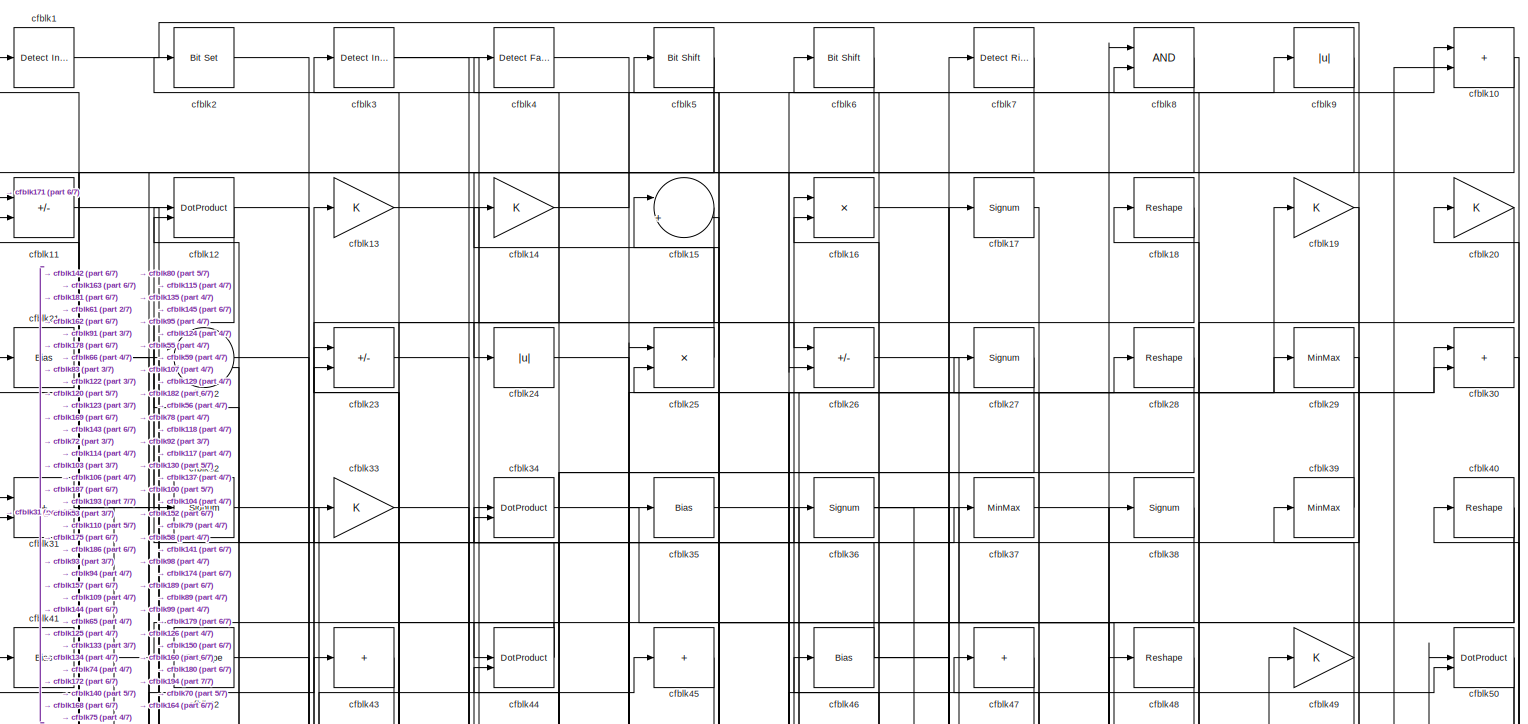
[diagram: root canvas - part 1/7, full width, top band]
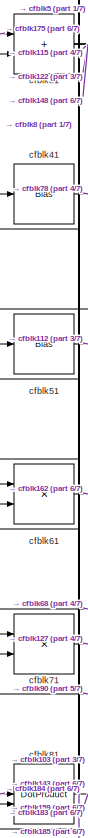
[diagram: root canvas - part 2/7, top left region]
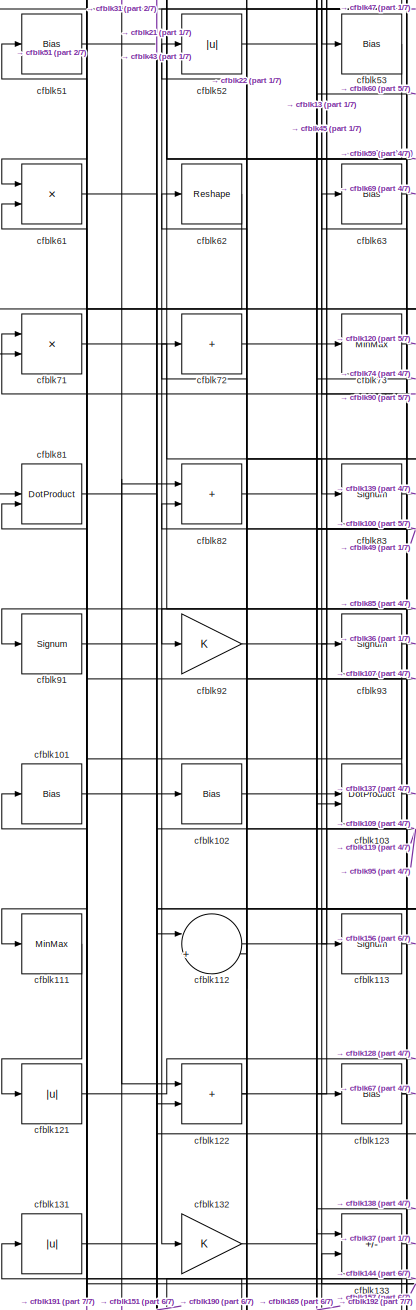
[diagram: root canvas - part 3/7, middle left region]
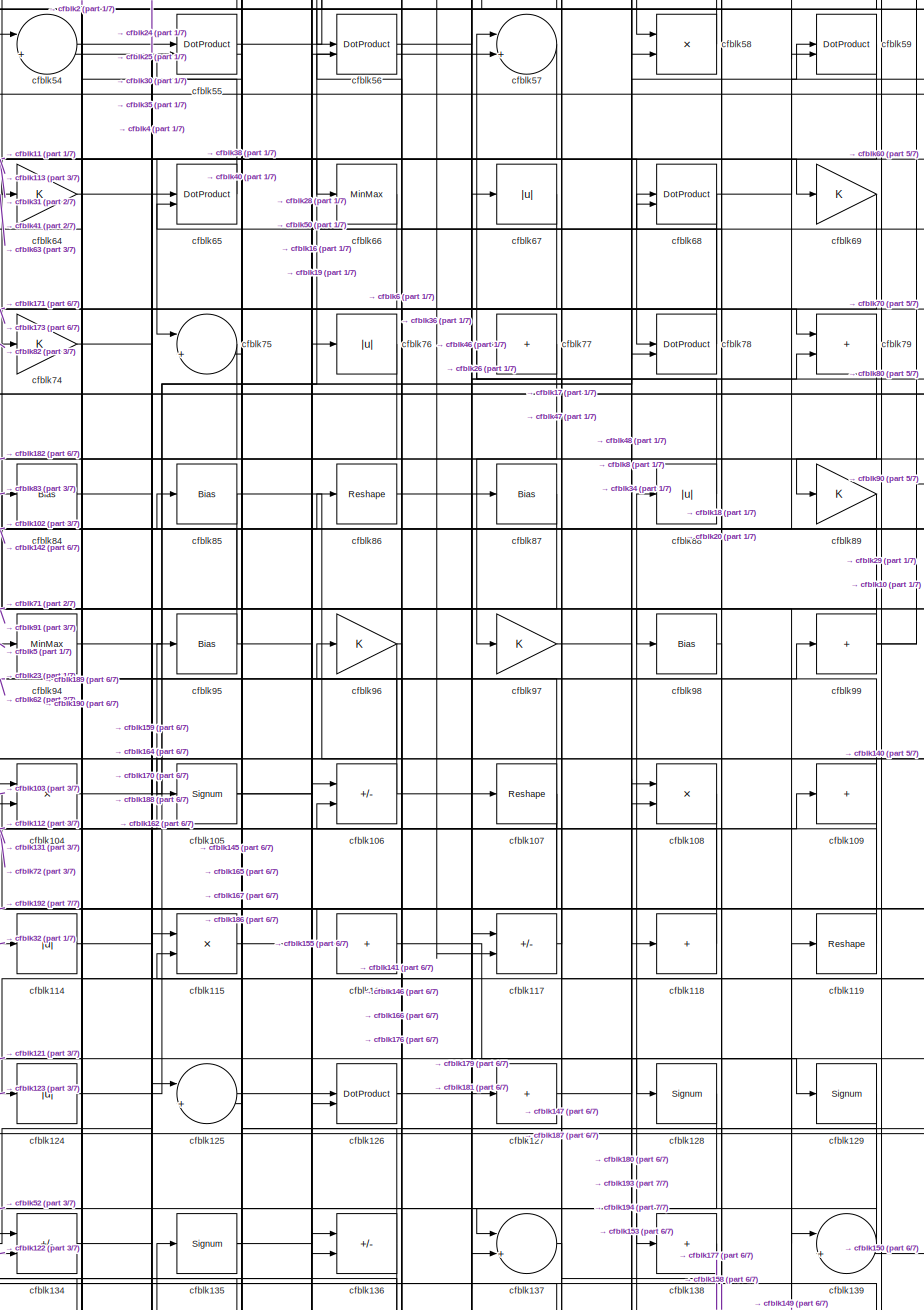
[diagram: root canvas - part 4/7, central region]
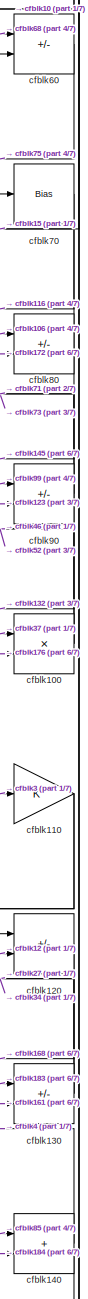
[diagram: root canvas - part 5/7, middle right region]
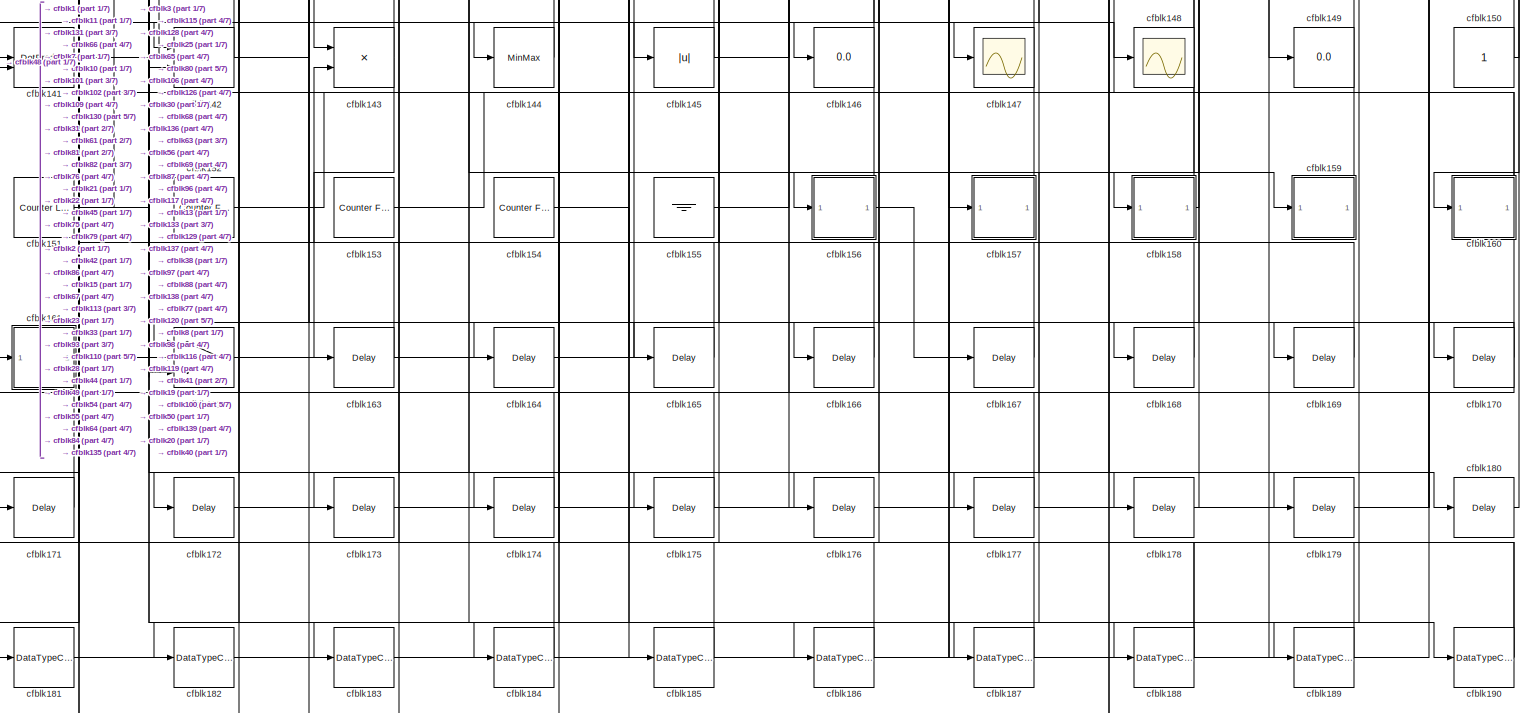
[diagram: root canvas - part 6/7, full width, bottom band]
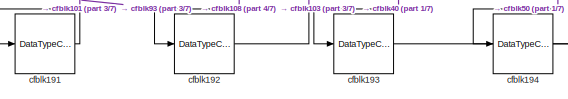
[diagram: root canvas - part 7/7, bottom left region]
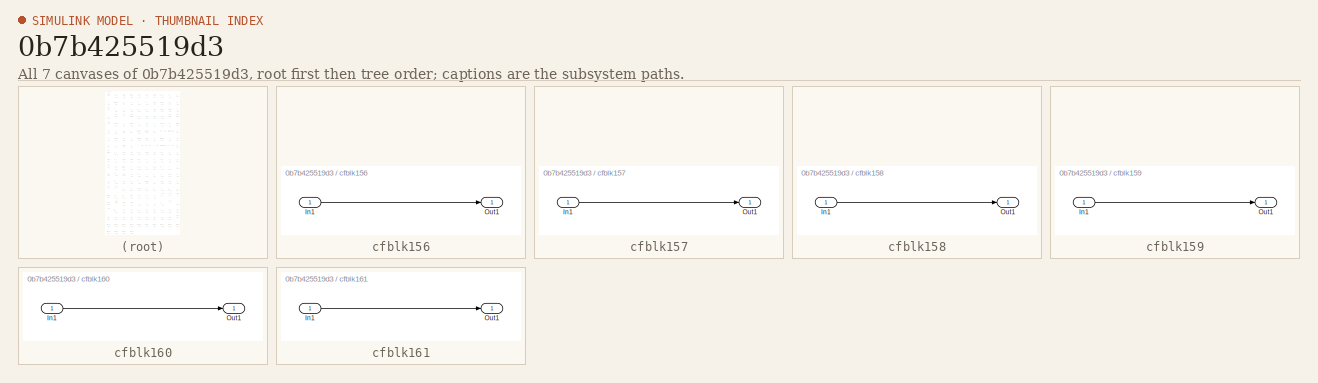
[diagram: thumbnail index - all 7 canvases of the model, root first then tree order]
MODEL slx_0b7b425519d3
KIND model
CONFIG AbsTol = auto
CONFIG EnableMultiTasking = off
CONFIG FixedStep = auto
CONFIG MaxStep = auto
CONFIG MinStep = auto
CONFIG RelTol = 1e-3
CONFIG SampleTimeConstraint = Unconstrained
CONFIG SolverName = VariableStepAuto
CONFIG StartTime = 0.0
CONFIG StopTime = 10.0
BLOCK [Reference] cfblk1  REF=simulink/Logic and Bit
Operations/Detect
Increase
  LibrarySourceBlock = hdlsllib/Logic and Bit\nOperations/Detect\nIncrease
  SourceBlock = simulink/Logic and Bit\nOperations/Detect\nIncrease
  SourceType = Detect Increase
BLOCK [Sum] cfblk10
  IconShape = rectangular
BLOCK [Product] cfblk100
  Inputs = */
  RndMeth = Zero
  SaturateOnIntegerOverflow = on
BLOCK [Bias] cfblk101
  Bias = 0.0
  SaturateOnIntegerOverflow = off
BLOCK [Bias] cfblk102
  Bias = 0.0
  SaturateOnIntegerOverflow = off
BLOCK [DotProduct] cfblk103
  OutDataTypeStr = Inherit: Inherit via internal rule
BLOCK [Product] cfblk104
  Inputs = */
  RndMeth = Zero
  SaturateOnIntegerOverflow = on
BLOCK [Signum] cfblk105
BLOCK [Sum] cfblk106
  IconShape = rectangular
  Inputs = +-
BLOCK [Reshape] cfblk107
BLOCK [Product] cfblk108
  Inputs = */
  RndMeth = Zero
  SaturateOnIntegerOverflow = on
BLOCK [Sum] cfblk109
  IconShape = rectangular
  Inputs = +
BLOCK [Sum] cfblk11
  IconShape = rectangular
  Inputs = +-
BLOCK [Gain] cfblk110
BLOCK [MinMax] cfblk111
BLOCK [Sum] cfblk112
  Inputs = |++
BLOCK [Signum] cfblk113
BLOCK [Abs] cfblk114
  SaturateOnIntegerOverflow = off
BLOCK [Product] cfblk115
  Inputs = */
  RndMeth = Zero
  SaturateOnIntegerOverflow = on
BLOCK [Sum] cfblk116
  IconShape = rectangular
  Inputs = +
BLOCK [Sum] cfblk117
  IconShape = rectangular
  Inputs = +-
BLOCK [Sum] cfblk118
  IconShape = rectangular
  Inputs = +
BLOCK [Reshape] cfblk119
BLOCK [DotProduct] cfblk12
  OutDataTypeStr = Inherit: Inherit via internal rule
BLOCK [Sum] cfblk120
  IconShape = rectangular
  Inputs = +-
BLOCK [Abs] cfblk121
  SaturateOnIntegerOverflow = off
BLOCK [Sum] cfblk122
  IconShape = rectangular
BLOCK [Bias] cfblk123
  Bias = 0.0
  SaturateOnIntegerOverflow = off
BLOCK [Abs] cfblk124
  SaturateOnIntegerOverflow = off
BLOCK [Sum] cfblk125
  Inputs = |++
BLOCK [DotProduct] cfblk126
  OutDataTypeStr = Inherit: Inherit via internal rule
BLOCK [Sum] cfblk127
  IconShape = rectangular
  Inputs = +
BLOCK [Signum] cfblk128
BLOCK [Signum] cfblk129
BLOCK [Gain] cfblk13
BLOCK [Sum] cfblk130
  IconShape = rectangular
  Inputs = +-
BLOCK [Abs] cfblk131
  SaturateOnIntegerOverflow = off
BLOCK [Gain] cfblk132
BLOCK [Sum] cfblk133
  IconShape = rectangular
  Inputs = +-
BLOCK [Sum] cfblk134
  IconShape = rectangular
  Inputs = +-
BLOCK [Signum] cfblk135
BLOCK [Sum] cfblk136
  IconShape = rectangular
  Inputs = +-
BLOCK [Sum] cfblk137
  Inputs = |++
BLOCK [Sum] cfblk138
  IconShape = rectangular
  Inputs = +
BLOCK [Sum] cfblk139
  Inputs = |++
BLOCK [Gain] cfblk14
BLOCK [Sum] cfblk140
  IconShape = rectangular
BLOCK [DotProduct] cfblk141
  OutDataTypeStr = Inherit: Inherit via internal rule
BLOCK [Product] cfblk142
  Inputs = */
  RndMeth = Zero
  SaturateOnIntegerOverflow = on
BLOCK [Product] cfblk143
  Inputs = */
  RndMeth = Zero
  SaturateOnIntegerOverflow = on
BLOCK [MinMax] cfblk144
BLOCK [Abs] cfblk145
  SaturateOnIntegerOverflow = off
BLOCK [Display] cfblk146
  Decimation = 1
BLOCK [Scope] cfblk147
  Floating = off
  NumInputPorts = 1
  ScopeSpecificationString = Simulink.scopes.TimeScopeBlockCfg('CurrentConfiguration', extmgr.ConfigurationSet(extmgr.Configuration('Core','General UI',true),extmgr.Configuration('Core','Source UI',true),extmgr.Configuration('Sources','WiredSimulink',true,'DataLoggingVariableName','ScopeData2','DataLoggingSaveFormat','Array','DataLoggingLimitDataPoints',true,'DataLoggingDecimation','1'),extmgr.Configuration('Visuals','Time Do...<+868ch>
BLOCK [Scope] cfblk148
  Floating = off
  NumInputPorts = 1
  ScopeSpecificationString = Simulink.scopes.TimeScopeBlockCfg('CurrentConfiguration', extmgr.ConfigurationSet(extmgr.Configuration('Core','General UI',true),extmgr.Configuration('Core','Source UI',true),extmgr.Configuration('Sources','WiredSimulink',true,'DataLoggingVariableName','ScopeData2','DataLoggingSaveFormat','Array','DataLoggingLimitDataPoints',true,'DataLoggingDecimation','1'),extmgr.Configuration('Visuals','Time Do...<+868ch>
BLOCK [Display] cfblk149
  Decimation = 1
BLOCK [Sum] cfblk15
  Inputs = |++
BLOCK [Constant] cfblk150
  SampleTime = -1
BLOCK [Reference] cfblk151  REF=hdlsllib/Sources/Counter
Limited
  SourceBlock = hdlsllib/Sources/Counter\nLimited
  SourceType = Counter Limited
BLOCK [Reference] cfblk152  REF=hdlsllib/Sources/Counter
Free-Running
  SourceBlock = hdlsllib/Sources/Counter\nFree-Running
  SourceType = Counter Free-Running
BLOCK [Reference] cfblk153  REF=hdlsllib/Sources/Counter
Free-Running
  SourceBlock = hdlsllib/Sources/Counter\nFree-Running
  SourceType = Counter Free-Running
BLOCK [Reference] cfblk154  REF=hdlsllib/Sources/Counter
Free-Running
  SourceBlock = hdlsllib/Sources/Counter\nFree-Running
  SourceType = Counter Free-Running
BLOCK [Ground] cfblk155
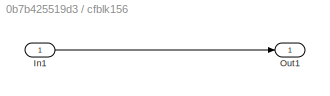
BLOCK [SubSystem] cfblk156
  LibrarySourceBlock = hdlsllib/Ports &\nSubsystems/Subsystem
BLOCK [Inport] cfblk156/In1
BLOCK [Outport] cfblk156/Out1
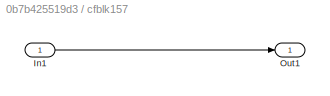
BLOCK [SubSystem] cfblk157
  LibrarySourceBlock = hdlsllib/Ports &\nSubsystems/Subsystem
BLOCK [Inport] cfblk157/In1
BLOCK [Outport] cfblk157/Out1
BLOCK [SubSystem] cfblk158
  LibrarySourceBlock = hdlsllib/Ports &\nSubsystems/Subsystem
BLOCK [Inport] cfblk158/In1
BLOCK [Outport] cfblk158/Out1
BLOCK [SubSystem] cfblk159
  LibrarySourceBlock = hdlsllib/Ports &\nSubsystems/Subsystem
BLOCK [Inport] cfblk159/In1
BLOCK [Outport] cfblk159/Out1
BLOCK [Product] cfblk16
  Inputs = */
  RndMeth = Zero
  SaturateOnIntegerOverflow = on
BLOCK [SubSystem] cfblk160
  LibrarySourceBlock = hdlsllib/Ports &\nSubsystems/Subsystem
BLOCK [Inport] cfblk160/In1
BLOCK [Outport] cfblk160/Out1
BLOCK [SubSystem] cfblk161
  LibrarySourceBlock = hdlsllib/Ports &\nSubsystems/Subsystem
BLOCK [Inport] cfblk161/In1
BLOCK [Outport] cfblk161/Out1
BLOCK [Switch] cfblk162
  InputSameDT = off
  SaturateOnIntegerOverflow = off
BLOCK [Delay] cfblk163
  InputPortMap = u0
  SampleTime = 1
BLOCK [Delay] cfblk164
  InputPortMap = u0
  SampleTime = 1
BLOCK [Delay] cfblk165
  InputPortMap = u0
  SampleTime = 1
BLOCK [Delay] cfblk166
  InputPortMap = u0
  SampleTime = 1
BLOCK [Delay] cfblk167
  InputPortMap = u0
  SampleTime = 1
BLOCK [Delay] cfblk168
  InputPortMap = u0
  SampleTime = 1
BLOCK [Delay] cfblk169
  InputPortMap = u0
  SampleTime = 1
BLOCK [Signum] cfblk17
BLOCK [Delay] cfblk170
  InputPortMap = u0
  SampleTime = 1
BLOCK [Delay] cfblk171
  InputPortMap = u0
  SampleTime = 1
BLOCK [Delay] cfblk172
  InputPortMap = u0
  SampleTime = 1
BLOCK [Delay] cfblk173
  InputPortMap = u0
  SampleTime = 1
BLOCK [Delay] cfblk174
  InputPortMap = u0
  SampleTime = 1
BLOCK [Delay] cfblk175
  InputPortMap = u0
  SampleTime = 1
BLOCK [Delay] cfblk176
  InputPortMap = u0
  SampleTime = 1
BLOCK [Delay] cfblk177
  InputPortMap = u0
  SampleTime = 1
BLOCK [Delay] cfblk178
  InputPortMap = u0
  SampleTime = 1
BLOCK [Delay] cfblk179
  InputPortMap = u0
  SampleTime = 1
BLOCK [Reshape] cfblk18
BLOCK [Delay] cfblk180
  InputPortMap = u0
  SampleTime = 1
BLOCK [DataTypeConversion] cfblk181
  RndMeth = Floor
  SaturateOnIntegerOverflow = off
BLOCK [DataTypeConversion] cfblk182
  OutDataTypeStr = uint8
  RndMeth = Floor
  SaturateOnIntegerOverflow = off
BLOCK [DataTypeConversion] cfblk183
  OutDataTypeStr = uint8
  RndMeth = Floor
  SaturateOnIntegerOverflow = off
BLOCK [DataTypeConversion] cfblk184
  OutDataTypeStr = uint8
  RndMeth = Floor
  SaturateOnIntegerOverflow = off
BLOCK [DataTypeConversion] cfblk185
  OutDataTypeStr = uint8
  RndMeth = Floor
  SaturateOnIntegerOverflow = off
BLOCK [DataTypeConversion] cfblk186
  RndMeth = Floor
  SaturateOnIntegerOverflow = off
BLOCK [DataTypeConversion] cfblk187
  OutDataTypeStr = uint8
  RndMeth = Floor
  SaturateOnIntegerOverflow = off
BLOCK [DataTypeConversion] cfblk188
  RndMeth = Floor
  SaturateOnIntegerOverflow = off
BLOCK [DataTypeConversion] cfblk189
  OutDataTypeStr = uint8
  RndMeth = Floor
  SaturateOnIntegerOverflow = off
BLOCK [Gain] cfblk19
BLOCK [DataTypeConversion] cfblk190
  RndMeth = Floor
  SaturateOnIntegerOverflow = off
BLOCK [DataTypeConversion] cfblk191
  OutDataTypeStr = uint8
  RndMeth = Floor
  SaturateOnIntegerOverflow = off
BLOCK [DataTypeConversion] cfblk192
  OutDataTypeStr = uint8
  RndMeth = Floor
  SaturateOnIntegerOverflow = off
BLOCK [DataTypeConversion] cfblk193
  OutDataTypeStr = uint8
  RndMeth = Floor
  SaturateOnIntegerOverflow = off
BLOCK [DataTypeConversion] cfblk194
  OutDataTypeStr = uint8
  RndMeth = Floor
  SaturateOnIntegerOverflow = off
BLOCK [Reference] cfblk2  REF=simulink/Logic and Bit
Operations/Bit Set
  LibrarySourceBlock = hdlsllib/Logic and Bit\nOperations/Bit Set
  SourceBlock = simulink/Logic and Bit\nOperations/Bit Set
  SourceType = Bit Set
BLOCK [Gain] cfblk20
BLOCK [Bias] cfblk21
  Bias = 0.0
  SaturateOnIntegerOverflow = off
BLOCK [Sum] cfblk22
  Inputs = |++
BLOCK [Sum] cfblk23
  IconShape = rectangular
  Inputs = +-
BLOCK [Abs] cfblk24
  SaturateOnIntegerOverflow = off
BLOCK [Product] cfblk25
  Inputs = */
  RndMeth = Zero
  SaturateOnIntegerOverflow = on
BLOCK [Sum] cfblk26
  IconShape = rectangular
  Inputs = +-
BLOCK [Signum] cfblk27
BLOCK [Reshape] cfblk28
BLOCK [MinMax] cfblk29
BLOCK [Reference] cfblk3  REF=simulink/Logic and Bit
Operations/Detect
Increase
  LibrarySourceBlock = hdlsllib/Logic and Bit\nOperations/Detect\nIncrease
  SourceBlock = simulink/Logic and Bit\nOperations/Detect\nIncrease
  SourceType = Detect Increase
BLOCK [Sum] cfblk30
  IconShape = rectangular
BLOCK [Sum] cfblk31
  IconShape = rectangular
BLOCK [Signum] cfblk32
BLOCK [Gain] cfblk33
BLOCK [DotProduct] cfblk34
  OutDataTypeStr = Inherit: Inherit via internal rule
BLOCK [Bias] cfblk35
  Bias = 0.0
  SaturateOnIntegerOverflow = off
BLOCK [Signum] cfblk36
BLOCK [MinMax] cfblk37
BLOCK [Signum] cfblk38
BLOCK [MinMax] cfblk39
BLOCK [Reference] cfblk4  REF=hdlsllib/Logic and Bit
Operations/Detect Fall
Negative
  SourceBlock = hdlsllib/Logic and Bit\nOperations/Detect Fall\nNegative
  SourceType = Detect Fall Negative
BLOCK [Reshape] cfblk40
BLOCK [Bias] cfblk41
  Bias = 0.0
  SaturateOnIntegerOverflow = off
BLOCK [Reshape] cfblk42
BLOCK [Sum] cfblk43
  IconShape = rectangular
  Inputs = +
BLOCK [DotProduct] cfblk44
  OutDataTypeStr = Inherit: Inherit via internal rule
BLOCK [Sum] cfblk45
  IconShape = rectangular
  Inputs = +
BLOCK [Bias] cfblk46
  Bias = 0.0
  SaturateOnIntegerOverflow = off
BLOCK [Sum] cfblk47
  IconShape = rectangular
  Inputs = +
BLOCK [Reshape] cfblk48
BLOCK [Gain] cfblk49
BLOCK [Reference] cfblk5  REF=hdlsllib/Logic and Bit
Operations/Bit Shift
  SourceBlock = hdlsllib/Logic and Bit\nOperations/Bit Shift
  SourceType = Bit Shift
BLOCK [DotProduct] cfblk50
  OutDataTypeStr = Inherit: Inherit via internal rule
BLOCK [Bias] cfblk51
  Bias = 0.0
  SaturateOnIntegerOverflow = off
BLOCK [Abs] cfblk52
  SaturateOnIntegerOverflow = off
BLOCK [Bias] cfblk53
  Bias = 0.0
  SaturateOnIntegerOverflow = off
BLOCK [Sum] cfblk54
  Inputs = |++
BLOCK [DotProduct] cfblk55
  OutDataTypeStr = Inherit: Inherit via internal rule
BLOCK [DotProduct] cfblk56
  OutDataTypeStr = Inherit: Inherit via internal rule
BLOCK [Sum] cfblk57
  Inputs = |++
BLOCK [Product] cfblk58
  Inputs = */
  RndMeth = Zero
  SaturateOnIntegerOverflow = on
BLOCK [DotProduct] cfblk59
  OutDataTypeStr = Inherit: Inherit via internal rule
BLOCK [Reference] cfblk6  REF=hdlsllib/Logic and Bit
Operations/Bit Shift
  SourceBlock = hdlsllib/Logic and Bit\nOperations/Bit Shift
  SourceType = Bit Shift
BLOCK [Sum] cfblk60
  IconShape = rectangular
  Inputs = +-
BLOCK [Product] cfblk61
  Inputs = */
  RndMeth = Zero
  SaturateOnIntegerOverflow = on
BLOCK [Reshape] cfblk62
BLOCK [Bias] cfblk63
  Bias = 0.0
  SaturateOnIntegerOverflow = off
BLOCK [Gain] cfblk64
BLOCK [DotProduct] cfblk65
  OutDataTypeStr = Inherit: Inherit via internal rule
BLOCK [MinMax] cfblk66
BLOCK [Abs] cfblk67
  SaturateOnIntegerOverflow = off
BLOCK [DotProduct] cfblk68
  OutDataTypeStr = Inherit: Inherit via internal rule
BLOCK [Gain] cfblk69
BLOCK [Reference] cfblk7  REF=hdlsllib/Logic and Bit
Operations/Detect Rise
Nonnegative
  SourceBlock = hdlsllib/Logic and Bit\nOperations/Detect Rise\nNonnegative
  SourceType = Detect Rise Nonnegative
BLOCK [Bias] cfblk70
  Bias = 0.0
  SaturateOnIntegerOverflow = off
BLOCK [Product] cfblk71
  Inputs = */
  RndMeth = Zero
  SaturateOnIntegerOverflow = on
BLOCK [Sum] cfblk72
  IconShape = rectangular
  Inputs = +
BLOCK [MinMax] cfblk73
BLOCK [Gain] cfblk74
BLOCK [Sum] cfblk75
  Inputs = |++
BLOCK [Abs] cfblk76
  SaturateOnIntegerOverflow = off
BLOCK [Sum] cfblk77
  IconShape = rectangular
  Inputs = +
BLOCK [DotProduct] cfblk78
  OutDataTypeStr = Inherit: Inherit via internal rule
BLOCK [Sum] cfblk79
  IconShape = rectangular
BLOCK [Logic] cfblk8
  AllPortsSameDT = off
  OutDataTypeStr = boolean
BLOCK [Sum] cfblk80
  IconShape = rectangular
  Inputs = +-
BLOCK [DotProduct] cfblk81
  OutDataTypeStr = Inherit: Inherit via internal rule
BLOCK [Sum] cfblk82
  IconShape = rectangular
BLOCK [Signum] cfblk83
BLOCK [Bias] cfblk84
  Bias = 0.0
  SaturateOnIntegerOverflow = off
BLOCK [Bias] cfblk85
  Bias = 0.0
  SaturateOnIntegerOverflow = off
BLOCK [Reshape] cfblk86
BLOCK [Bias] cfblk87
  Bias = 0.0
  SaturateOnIntegerOverflow = off
BLOCK [Abs] cfblk88
  SaturateOnIntegerOverflow = off
BLOCK [Gain] cfblk89
BLOCK [Abs] cfblk9
  SaturateOnIntegerOverflow = off
BLOCK [Sum] cfblk90
  IconShape = rectangular
  Inputs = +-
BLOCK [Signum] cfblk91
BLOCK [Gain] cfblk92
BLOCK [Signum] cfblk93
BLOCK [MinMax] cfblk94
BLOCK [Bias] cfblk95
  Bias = 0.0
  SaturateOnIntegerOverflow = off
BLOCK [Gain] cfblk96
BLOCK [Gain] cfblk97
BLOCK [Bias] cfblk98
  Bias = 0.0
  SaturateOnIntegerOverflow = off
BLOCK [Sum] cfblk99
  IconShape = rectangular
  Inputs = +
NET cfblk100:1 -> cfblk46:1, cfblk52:1
LINE cfblk101:1 -> cfblk190:1
LINE cfblk102:1 -> cfblk85:1
NET cfblk103:1 -> cfblk137:2, cfblk51:1
LINE cfblk104:1 -> cfblk48:1
NET cfblk105:1 -> cfblk57:2, cfblk99:1
NET cfblk106:1 -> cfblk23:2, cfblk80:1
NET cfblk107:1 -> cfblk104:2, cfblk122:2, cfblk134:2, cfblk62:1
LINE cfblk108:1 -> cfblk192:1
NET cfblk109:1 -> cfblk142:2, cfblk34:1
NET cfblk10:1 -> cfblk162:3, cfblk70:1
NET cfblk110:1 -> cfblk140:2, cfblk184:1
LINE cfblk111:1 -> cfblk121:1
LINE cfblk112:1 -> cfblk95:1
LINE cfblk113:1 -> cfblk156:1
LINE cfblk114:1 -> cfblk35:1
LINE cfblk115:1 -> cfblk50:2
LINE cfblk116:1 -> cfblk149:1
LINE cfblk117:1 -> cfblk47:1
LINE cfblk118:1 -> cfblk16:2
LINE cfblk119:1 -> cfblk72:1
LINE cfblk11:1 -> cfblk66:1
LINE cfblk120:1 -> cfblk168:1
LINE cfblk121:1 -> cfblk128:1
NET cfblk122:1 -> cfblk22:2, cfblk45:1
NET cfblk123:1 -> cfblk67:1, cfblk90:2
LINE cfblk124:1 -> cfblk16:1
LINE cfblk125:1 -> cfblk29:1
NET cfblk126:1 -> cfblk106:2, cfblk79:2
LINE cfblk127:1 -> cfblk59:1
LINE cfblk128:1 -> cfblk165:1
LINE cfblk129:1 -> cfblk147:1
NET cfblk12:1 -> cfblk120:2, cfblk32:1
NET cfblk130:1 -> cfblk27:1, cfblk34:2
LINE cfblk131:1 -> cfblk109:1
LINE cfblk132:1 -> cfblk60:2
LINE cfblk133:1 -> cfblk37:1
LINE cfblk134:1 -> cfblk30:1
NET cfblk135:1 -> cfblk28:1, cfblk55:2
NET cfblk136:1 -> cfblk141:1, cfblk54:2
LINE cfblk137:1 -> cfblk187:1
LINE cfblk138:1 -> cfblk177:1
LINE cfblk139:1 -> cfblk96:1
LINE cfblk13:1 -> cfblk157:1
LINE cfblk140:1 -> cfblk4:1
LINE cfblk141:1 -> cfblk76:1
NET cfblk142:1 -> cfblk21:1, cfblk86:1
NET cfblk143:1 -> cfblk163:1, cfblk61:2
LINE cfblk144:1 -> cfblk93:1
NET cfblk145:1 -> cfblk30:2, cfblk3:1, cfblk68:1
LINE cfblk14:1 -> cfblk9:1
NET cfblk150:1 -> cfblk139:2, cfblk40:1
NET cfblk151:1 -> cfblk102:1, cfblk82:1
LINE cfblk152:1 -> cfblk38:1
LINE cfblk153:1 -> cfblk88:1
LINE cfblk154:1 -> cfblk185:1
LINE cfblk155:1 -> cfblk136:1
LINE cfblk156/In1:1 -> cfblk156/Out1:1
NET cfblk156:1 -> cfblk167:1, cfblk63:1
LINE cfblk157/In1:1 -> cfblk157/Out1:1
LINE cfblk157:1 -> cfblk133:2
LINE cfblk158/In1:1 -> cfblk158/Out1:1
NET cfblk158:1 -> cfblk68:2, cfblk77:1
LINE cfblk159/In1:1 -> cfblk159/Out1:1
LINE cfblk159:1 -> cfblk41:1
LINE cfblk15:1 -> cfblk143:1
LINE cfblk160/In1:1 -> cfblk160/Out1:1
NET cfblk160:1 -> cfblk11:2, cfblk161:1, cfblk25:2
LINE cfblk161/In1:1 -> cfblk161/Out1:1
LINE cfblk161:1 -> cfblk130:2
LINE cfblk162:1 -> cfblk135:1
LINE cfblk163:1 -> cfblk1:1
LINE cfblk164:1 -> cfblk55:1
LINE cfblk165:1 -> cfblk133:1
LINE cfblk166:1 -> cfblk143:2
LINE cfblk167:1 -> cfblk115:2
LINE cfblk168:1 -> cfblk15:2
LINE cfblk169:1 -> cfblk44:2
LINE cfblk16:1 -> cfblk129:1
LINE cfblk170:1 -> cfblk162:1
LINE cfblk171:1 -> cfblk11:1
LINE cfblk172:1 -> cfblk80:2
LINE cfblk173:1 -> cfblk126:1
LINE cfblk174:1 -> cfblk22:1
LINE cfblk175:1 -> cfblk31:1
LINE cfblk176:1 -> cfblk100:2
LINE cfblk177:1 -> cfblk106:1
LINE cfblk178:1 -> cfblk8:2
LINE cfblk179:1 -> cfblk50:1
LINE cfblk17:1 -> cfblk137:1
LINE cfblk180:1 -> cfblk20:1
NET cfblk181:1 -> cfblk117:1, cfblk87:1
LINE cfblk182:1 -> cfblk7:1
LINE cfblk183:1 -> cfblk130:1
LINE cfblk184:1 -> cfblk81:1
LINE cfblk185:1 -> cfblk81:2
NET cfblk186:1 -> cfblk119:1, cfblk65:2
LINE cfblk187:1 -> cfblk33:1
NET cfblk188:1 -> cfblk56:2, cfblk65:1
LINE cfblk189:1 -> cfblk64:1
LINE cfblk18:1 -> cfblk53:1
NET cfblk190:1 -> cfblk131:1, cfblk84:1
LINE cfblk191:1 -> cfblk101:1
LINE cfblk192:1 -> cfblk103:1
LINE cfblk193:1 -> cfblk108:1
LINE cfblk194:1 -> cfblk108:2
LINE cfblk19:1 -> cfblk189:1
LINE cfblk1:1 -> cfblk39:1
LINE cfblk20:1 -> cfblk98:1
NET cfblk21:1 -> cfblk178:1, cfblk83:1
LINE cfblk22:1 -> cfblk123:1
LINE cfblk23:1 -> cfblk175:1
LINE cfblk24:1 -> cfblk125:1
LINE cfblk25:1 -> cfblk14:1
LINE cfblk26:1 -> cfblk118:1
LINE cfblk27:1 -> cfblk44:1
LINE cfblk28:1 -> cfblk144:1
LINE cfblk29:1 -> cfblk89:1
LINE cfblk2:1 -> cfblk164:1
LINE cfblk30:1 -> cfblk160:1
NET cfblk31:1 -> cfblk115:1, cfblk122:1, cfblk148:1
LINE cfblk32:1 -> cfblk114:1
LINE cfblk33:1 -> cfblk186:1
LINE cfblk34:1 -> cfblk58:1
LINE cfblk35:1 -> cfblk59:2
NET cfblk36:1 -> cfblk117:2, cfblk58:2, cfblk79:1
LINE cfblk37:1 -> cfblk100:1
LINE cfblk38:1 -> cfblk75:2
LINE cfblk39:1 -> cfblk5:1
NET cfblk3:1 -> cfblk110:1, cfblk26:1
NET cfblk40:1 -> cfblk125:2, cfblk193:1
LINE cfblk41:1 -> cfblk78:1
LINE cfblk42:1 -> cfblk169:1
LINE cfblk43:1 -> cfblk103:2
NET cfblk44:1 -> cfblk12:1, cfblk42:1
LINE cfblk45:1 -> cfblk172:1
NET cfblk46:1 -> cfblk107:1, cfblk12:2, cfblk78:2
LINE cfblk47:1 -> cfblk92:1
LINE cfblk48:1 -> cfblk141:2
NET cfblk49:1 -> cfblk174:1, cfblk23:1
LINE cfblk4:1 -> cfblk56:1
NET cfblk50:1 -> cfblk126:2, cfblk194:1
LINE cfblk51:1 -> cfblk112:1
LINE cfblk52:1 -> cfblk138:1
LINE cfblk53:1 -> cfblk112:2
LINE cfblk54:1 -> cfblk170:1
LINE cfblk55:1 -> cfblk19:1
LINE cfblk56:1 -> cfblk17:1
LINE cfblk57:1 -> cfblk124:1
LINE cfblk58:1 -> cfblk54:1
LINE cfblk59:1 -> cfblk113:1
NET cfblk5:1 -> cfblk61:1, cfblk94:1
LINE cfblk60:1 -> cfblk75:1
LINE cfblk61:1 -> cfblk162:2
LINE cfblk62:1 -> cfblk111:1
LINE cfblk63:1 -> cfblk69:1
LINE cfblk64:1 -> cfblk188:1
LINE cfblk65:1 -> cfblk2:1
LINE cfblk66:1 -> cfblk171:1
LINE cfblk67:1 -> cfblk173:1
NET cfblk68:1 -> cfblk105:1, cfblk60:1, cfblk71:2
LINE cfblk69:1 -> cfblk166:1
LINE cfblk6:1 -> cfblk24:1
LINE cfblk70:1 -> cfblk116:1
LINE cfblk71:1 -> cfblk127:1
LINE cfblk72:1 -> cfblk13:1
LINE cfblk73:1 -> cfblk120:1
LINE cfblk74:1 -> cfblk25:1
LINE cfblk75:1 -> cfblk182:1
LINE cfblk76:1 -> cfblk134:1
LINE cfblk77:1 -> cfblk97:1
LINE cfblk78:1 -> cfblk6:1
LINE cfblk79:1 -> cfblk142:1
LINE cfblk7:1 -> cfblk181:1
NET cfblk80:1 -> cfblk145:1, cfblk15:1
LINE cfblk81:1 -> cfblk183:1
LINE cfblk82:1 -> cfblk74:1
LINE cfblk83:1 -> cfblk139:1
LINE cfblk84:1 -> cfblk159:1
NET cfblk85:1 -> cfblk140:1, cfblk91:1
LINE cfblk86:1 -> cfblk179:1
LINE cfblk87:1 -> cfblk176:1
LINE cfblk88:1 -> cfblk57:1
LINE cfblk89:1 -> cfblk136:2
LINE cfblk8:1 -> cfblk31:2
NET cfblk90:1 -> cfblk132:1, cfblk71:1, cfblk73:1
LINE cfblk91:1 -> cfblk43:1
LINE cfblk92:1 -> cfblk49:1
NET cfblk93:1 -> cfblk191:1, cfblk36:1
LINE cfblk94:1 -> cfblk8:1
NET cfblk95:1 -> cfblk10:1, cfblk82:2
NET cfblk96:1 -> cfblk104:1, cfblk146:1
LINE cfblk97:1 -> cfblk180:1
LINE cfblk98:1 -> cfblk158:1
NET cfblk99:1 -> cfblk10:2, cfblk18:1, cfblk90:1
LINE cfblk9:1 -> cfblk26:2
note: NET lines group one-source signal fan-out (src -> all destinations, sorted); 1:1 wires keep LINE
